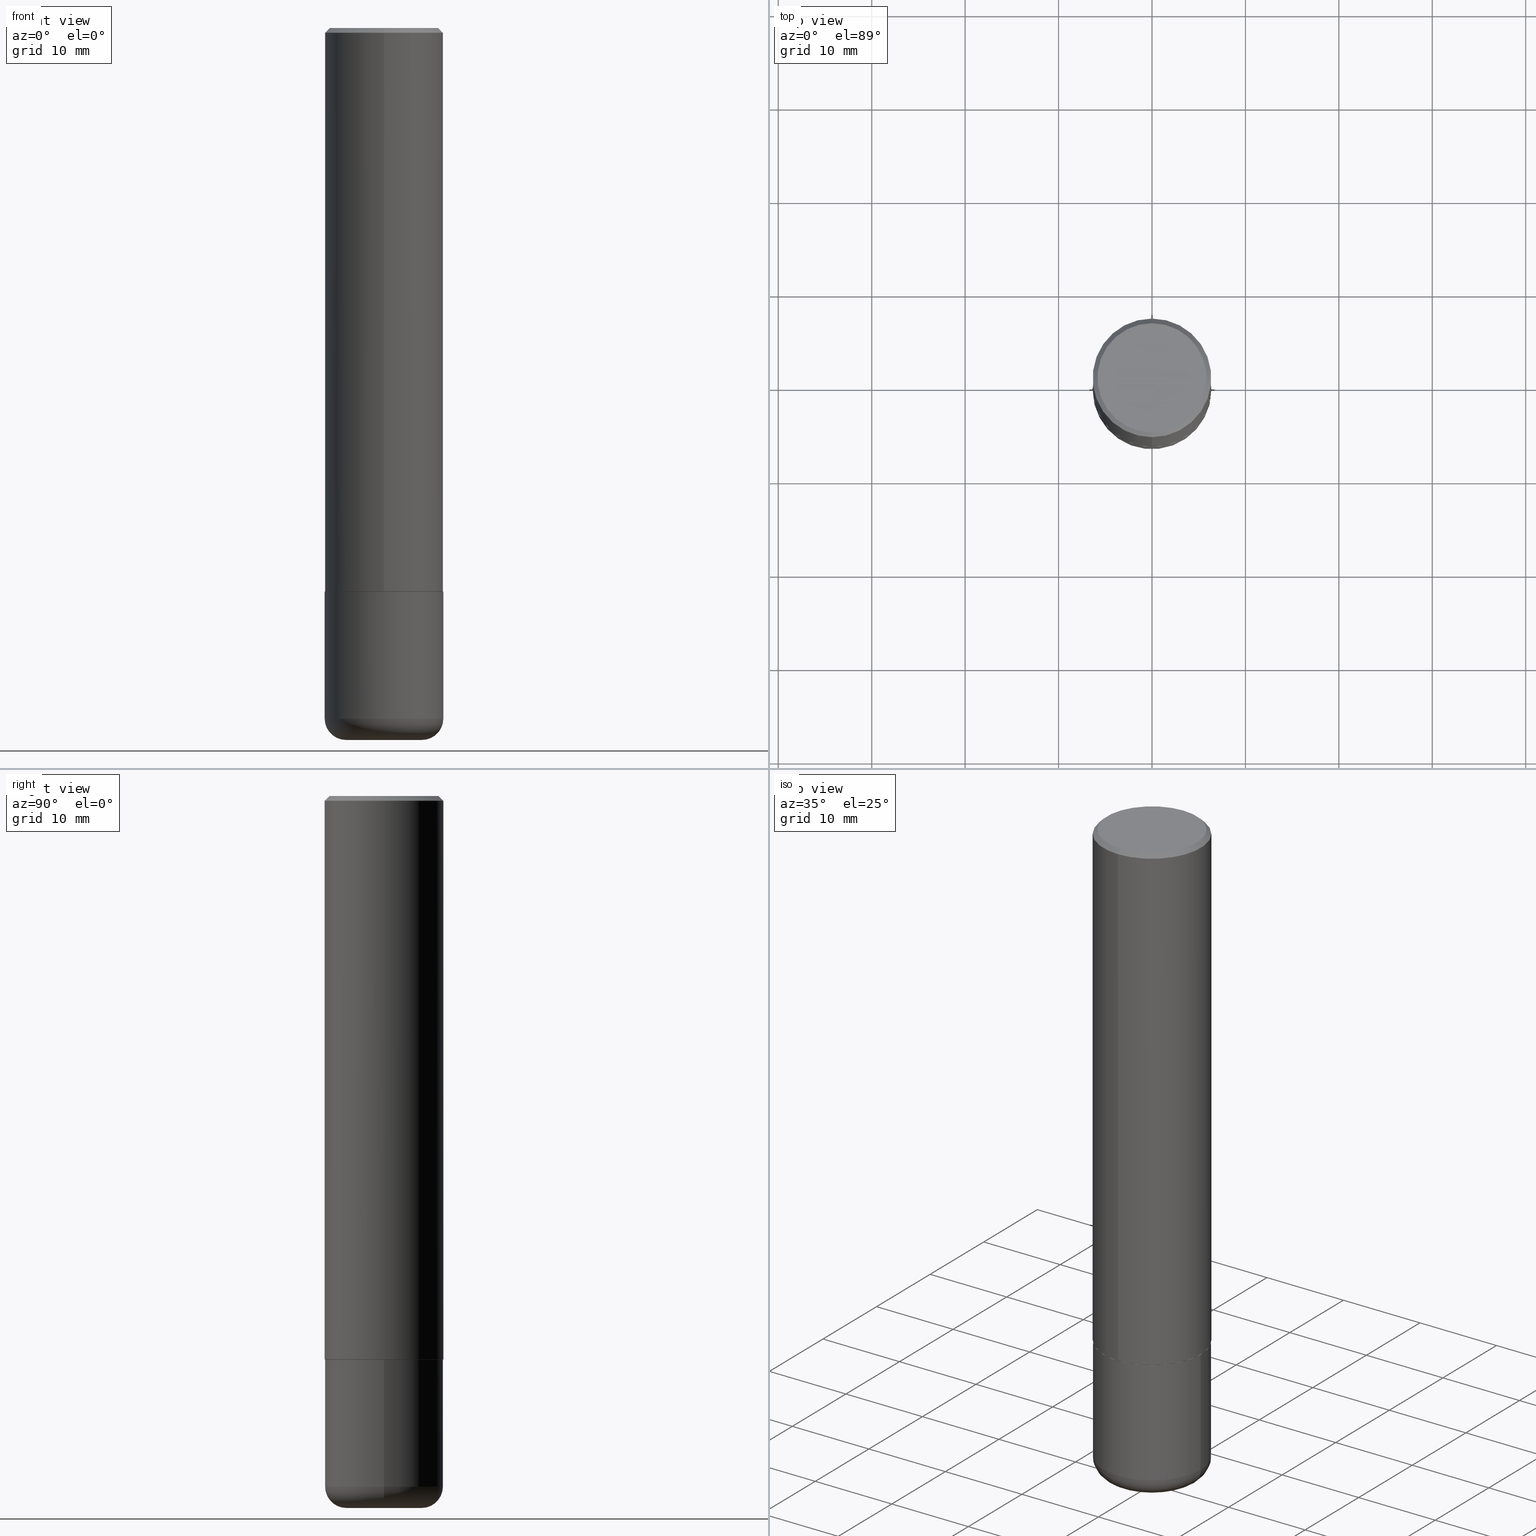
[diagram: canonical four-view strip — front | top / right | iso, engineering-drawing reading convention]
A machine part, canonical four-view strip (front | top / right | iso — engineering-drawing reading convention). The complete STEP part file that produces these views, byte-faithful:
ISO-10303-21;
HEADER;
FILE_DESCRIPTION (( 'STEP AP203' ),
    '1' );
FILE_NAME ('37338.STEP',
    '2024-03-01T23:53:19',
    ( '' ),
    ( '' ),
    'SwSTEP 2.0',
    'SolidWorks 2023',
    '' );
FILE_SCHEMA (( 'CONFIG_CONTROL_DESIGN' ));
ENDSEC;

DATA;
#1 = DIRECTION ( 'NONE',  ( 7.105427357601001859E-15, 1.000000000000000000, -3.491481338843145583E-15 ) ) ;
#2 = ORIENTED_EDGE ( 'NONE', *, *, #320, .T. ) ;
#3 = DIRECTION ( 'NONE',  ( -6.982962677686265922E-15, -1.000000000000000000, 3.500180241882337655E-15 ) ) ;
#4 = DIRECTION ( 'NONE',  ( -6.982962677686265133E-15, -1.000000000000000000, 3.291383124896702687E-15 ) ) ;
#5 = ADVANCED_FACE ( 'NONE', ( #406 ), #19, .F. ) ;
#6 = VECTOR ( 'NONE', #130, 39.37007874015748143 ) ;
#7 = ADVANCED_FACE ( 'NONE', ( #116 ), #308, .T. ) ;
#8 = APPLICATION_PROTOCOL_DEFINITION ( 'international standard', 'config_control_design', 1994, #80 ) ;
#9 = DIRECTION ( 'NONE',  ( -6.982962677686266711E-15, -1.000000000000000000, 3.491974475474889733E-15 ) ) ;
#10 =( NAMED_UNIT ( * ) SI_UNIT ( $, .STERADIAN. ) SOLID_ANGLE_UNIT ( ) );
#11 = AXIS2_PLACEMENT_3D ( 'NONE', #370, #49, #207 ) ;
#12 = FACE_OUTER_BOUND ( 'NONE', #25, .T. ) ;
#13 = ORIENTED_EDGE ( 'NONE', *, *, #108, .T. ) ;
#14 = CIRCLE ( 'NONE', #397, 0.08999999999999964972 ) ;
#15 = DIRECTION ( 'NONE',  ( -2.445468806185136597E-29, 3.491481338843145583E-15, 1.000000000000000000 ) ) ;
#16 = LINE ( 'NONE', #275, #31 ) ;
#17 = EDGE_CURVE ( 'NONE', #279, #215, #240, .T. ) ;
#18 = CARTESIAN_POINT ( 'NONE',  ( 0.000000000000000000, 0.000000000000000000, 0.000000000000000000 ) ) ;
#19 = PLANE ( 'NONE',  #177 ) ;
#20 = AXIS2_PLACEMENT_3D ( 'NONE', #407, #242, #221 ) ;
#21 = DIRECTION ( 'NONE',  ( 1.000000000000000000, -6.982962677686269077E-15, 0.000000000000000000 ) ) ;
#22 = APPROVAL_PERSON_ORGANIZATION ( #144, #62, #171 ) ;
#23 = APPROVAL ( #363, 'UNSPECIFIED' ) ;
#24 = ORIENTED_EDGE ( 'NONE', *, *, #417, .T. ) ;
#25 = EDGE_LOOP ( 'NONE', ( #402, #27, #347, #252 ) ) ;
#26 = DIRECTION ( 'NONE',  ( 6.982962677686265922E-15, 1.000000000000000000, -3.491974475474889339E-15 ) ) ;
#27 = ORIENTED_EDGE ( 'NONE', *, *, #228, .T. ) ;
#28 = DIRECTION ( 'NONE',  ( -2.445468806185136877E-29, 3.491481338843145188E-15, 1.000000000000000000 ) ) ;
#29 = ORIENTED_EDGE ( 'NONE', *, *, #380, .T. ) ;
#30 = DIRECTION ( 'NONE',  ( -6.982962677686266711E-15, -1.000000000000000000, 3.491481338843145583E-15 ) ) ;
#31 = VECTOR ( 'NONE', #379, 39.37007874015748143 ) ;
#32 = ORIENTED_EDGE ( 'NONE', *, *, #154, .F. ) ;
#33 = DIRECTION ( 'NONE',  ( -1.000000000000000000, 7.105427357601006592E-15, 0.000000000000000000 ) ) ;
#34 = PERSON_AND_ORGANIZATION_ROLE ( 'creator' ) ;
#35 = EDGE_CURVE ( 'NONE', #392, #389, #248, .T. ) ;
#36 = ADVANCED_BREP_SHAPE_REPRESENTATION ( '37338', ( #213, #359, #276 ), #360 ) ;
#37 = APPROVAL_STATUS ( 'not_yet_approved' ) ;
#38 = VECTOR ( 'NONE', #238, 39.37007874015748143 ) ;
#39 = DIRECTION ( 'NONE',  ( 1.000000000000000000, -6.982962677686266711E-15, 4.876176775795935793E-29 ) ) ;
#40 = EDGE_CURVE ( 'NONE', #59, #176, #186, .T. ) ;
#41 = COORDINATED_UNIVERSAL_TIME_OFFSET ( 5, 0, .BEHIND. ) ;
#42 = DESIGN_CONTEXT ( 'detailed design', #160, 'design' ) ;
#43 = APPROVAL_STATUS ( 'not_yet_approved' ) ;
#44 = CONICAL_SURFACE ( 'NONE', #218, 0.2489999999999999991, 0.7853981633975507526 ) ;
#45 = AXIS2_PLACEMENT_3D ( 'NONE', #323, #198, #291 ) ;
#46 = COORDINATED_UNIVERSAL_TIME_OFFSET ( 5, 0, .BEHIND. ) ;
#47 = PERSON_AND_ORGANIZATION_ROLE ( 'classification_officer' ) ;
#48 = LINE ( 'NONE', #112, #110 ) ;
#49 = DIRECTION ( 'NONE',  ( -2.445124450715689953E-29, 3.491974475474889339E-15, 1.000000000000000000 ) ) ;
#50 = ORIENTED_EDGE ( 'NONE', *, *, #183, .F. ) ;
#51 = CIRCLE ( 'NONE', #81, 0.2499999999999999722 ) ;
#52 = DIRECTION ( 'NONE',  ( -2.445124450715689953E-29, 3.491974475474889339E-15, 1.000000000000000000 ) ) ;
#53 = EDGE_CURVE ( 'NONE', #59, #414, #48, .T. ) ;
#54 = DIRECTION ( 'NONE',  ( -6.982962677686265922E-15, -1.000000000000000000, 3.278217592397112312E-15 ) ) ;
#55 = FACE_OUTER_BOUND ( 'NONE', #351, .T. ) ;
#56 = ORIENTED_EDGE ( 'NONE', *, *, #346, .T. ) ;
#57 = DIRECTION ( 'NONE',  ( 1.000000000000000000, -6.982962677686269077E-15, 0.000000000000000000 ) ) ;
#58 = DIRECTION ( 'NONE',  ( -2.445468806185136597E-29, 3.491481338843145583E-15, 1.000000000000000000 ) ) ;
#59 = VERTEX_POINT ( 'NONE', #243 ) ;
#60 = AXIS2_PLACEMENT_3D ( 'NONE', #18, #223, #125 ) ;
#61 = DIRECTION ( 'NONE',  ( -2.445124450715689953E-29, 3.491974475474889339E-15, 1.000000000000000000 ) ) ;
#62 = APPROVAL ( #43, 'UNSPECIFIED' ) ;
#63 = EDGE_LOOP ( 'NONE', ( #56, #354, #191, #69 ) ) ;
#64 = DIRECTION ( 'NONE',  ( 1.000000000000000000, -6.982962677686266711E-15, 4.876176775795935793E-29 ) ) ;
#65 = ADVANCED_FACE ( 'NONE', ( #241 ), #118, .T. ) ;
#66 = LINE ( 'NONE', #393, #75 ) ;
#67 = ORIENTED_EDGE ( 'NONE', *, *, #239, .T. ) ;
#68 = CARTESIAN_POINT ( 'NONE',  ( 0.1600000000000000033, -1.127748472446335797E-14, -2.910000000000000586 ) ) ;
#69 = ORIENTED_EDGE ( 'NONE', *, *, #265, .F. ) ;
#70 = APPROVAL_ROLE ( '' ) ;
#71 = APPROVAL_PERSON_ORGANIZATION ( #357, #23, #78 ) ;
#72 = CALENDAR_DATE ( 2024, 1, 3 ) ;
#73 = PERSON_AND_ORGANIZATION ( #271, #163 ) ;
#74 = CARTESIAN_POINT ( 'NONE',  ( -0.2499999999999998612, -8.383853856633305780E-15, -2.910000000000000586 ) ) ;
#75 = VECTOR ( 'NONE', #199, 39.37007874015748143 ) ;
#76 = CARTESIAN_POINT ( 'NONE',  ( -1.646519519465165587E-15, -0.2299999999999995381, 1.230118799794564821E-15 ) ) ;
#77 = CC_DESIGN_SECURITY_CLASSIFICATION ( #321, ( #235 ) ) ;
#78 = APPROVAL_ROLE ( '' ) ;
#79 = PERSON_AND_ORGANIZATION_ROLE ( 'design_supplier' ) ;
#80 = APPLICATION_CONTEXT ( 'configuration controlled 3d designs of mechanical parts and assemblies' ) ;
#81 = AXIS2_PLACEMENT_3D ( 'NONE', #180, #404, #302 ) ;
#82 = CIRCLE ( 'NONE', #151, 0.2489999999999999991 ) ;
#83 = EDGE_CURVE ( 'NONE', #114, #414, #51, .T. ) ;
#84 = EDGE_CURVE ( 'NONE', #381, #279, #16, .T. ) ;
#85 = CARTESIAN_POINT ( 'NONE',  ( 0.000000000000000000, 0.000000000000000000, 0.000000000000000000 ) ) ;
#86 = ORIENTED_EDGE ( 'NONE', *, *, #255, .F. ) ;
#87 = CALENDAR_DATE ( 2024, 1, 3 ) ;
#88 = ORIENTED_EDGE ( 'NONE', *, *, #17, .F. ) ;
#89 = AXIS2_PLACEMENT_3D ( 'NONE', #247, #95, #90 ) ;
#90 = DIRECTION ( 'NONE',  ( -6.982962677686265922E-15, -1.000000000000000000, 3.491974475474888944E-15 ) ) ;
#91 = LINE ( 'NONE', #212, #6 ) ;
#92 = DIRECTION ( 'NONE',  ( -6.982962677686265922E-15, -1.000000000000000000, 3.491974475474888944E-15 ) ) ;
#93 = ORIENTED_EDGE ( 'NONE', *, *, #84, .F. ) ;
#94 = EDGE_LOOP ( 'NONE', ( #67, #356 ) ) ;
#95 = DIRECTION ( 'NONE',  ( -2.445124450715689953E-29, 3.491974475474889339E-15, 1.000000000000000000 ) ) ;
#96 = CARTESIAN_POINT ( 'NONE',  ( 5.804725445999048016E-29, -8.289947404777387606E-15, -2.374000000000000110 ) ) ;
#97 = DIRECTION ( 'NONE',  ( 1.000000000000000000, -6.982962677686271444E-15, 0.000000000000000000 ) ) ;
#98 = AXIS2_PLACEMENT_3D ( 'NONE', #281, #412, #3 ) ;
#99 = ORIENTED_EDGE ( 'NONE', *, *, #108, .F. ) ;
#100 = LINE ( 'NONE', #210, #128 ) ;
#101 = VERTEX_POINT ( 'NONE', #148 ) ;
#102 = CARTESIAN_POINT ( 'NONE',  ( 0.000000000000000000, 0.000000000000000000, 0.000000000000000000 ) ) ;
#103 = ORIENTED_EDGE ( 'NONE', *, *, #260, .T. ) ;
#104 = AXIS2_PLACEMENT_3D ( 'NONE', #376, #306, #372 ) ;
#105 = PERSON_AND_ORGANIZATION ( #271, #163 ) ;
#106 = PERSON_AND_ORGANIZATION ( #271, #163 ) ;
#107 = AXIS2_PLACEMENT_3D ( 'NONE', #324, #166, #353 ) ;
#108 = EDGE_CURVE ( 'NONE', #371, #414, #91, .T. ) ;
#109 = PERSON_AND_ORGANIZATION ( #271, #163 ) ;
#110 = VECTOR ( 'NONE', #409, 39.37007874015748143 ) ;
#111 = CARTESIAN_POINT ( 'NONE',  ( -1.745740669421567467E-15, -0.2500000000000001110, 8.729936188687228278E-16 ) ) ;
#112 = CARTESIAN_POINT ( 'NONE',  ( 1.776356839400251254E-15, 0.2500000000000001110, -8.729936188687228278E-16 ) ) ;
#113 = CARTESIAN_POINT ( 'NONE',  ( 0.2499999999999998612, -1.190595136545512292E-14, -2.910000000000000586 ) ) ;
#114 = VERTEX_POINT ( 'NONE', #225 ) ;
#115 = CARTESIAN_POINT ( 'NONE',  ( -1.715124499442881905E-15, -0.2500000000000000555, -0.01999999999999921979 ) ) ;
#116 = FACE_OUTER_BOUND ( 'NONE', #236, .T. ) ;
#117 = CC_DESIGN_PERSON_AND_ORGANIZATION_ASSIGNMENT ( #329, #268, ( #235 ) ) ;
#118 = TOROIDAL_SURFACE ( 'NONE', #104, 0.1600000000000000033, 0.08999999999999967748 ) ;
#119 = DIRECTION ( 'NONE',  ( -6.982962677686265133E-15, -1.000000000000000000, 3.291383124896702687E-15 ) ) ;
#120 = CARTESIAN_POINT ( 'NONE',  ( 7.336406418555408669E-29, -1.047444401652943478E-14, -2.999999999999999556 ) ) ;
#121 = CC_DESIGN_DATE_AND_TIME_ASSIGNMENT ( #233, #297, ( #321 ) ) ;
#122 = DIRECTION ( 'NONE',  ( -2.445468806185136597E-29, 3.491481338843145583E-15, 1.000000000000000000 ) ) ;
#123 = DIRECTION ( 'NONE',  ( 2.438088387897960049E-29, -3.491481338843145188E-15, -1.000000000000000000 ) ) ;
#124 = ORIENTED_EDGE ( 'NONE', *, *, #53, .T. ) ;
#125 = DIRECTION ( 'NONE',  ( -6.982962677686266711E-15, -1.000000000000000000, 3.491974475474889733E-15 ) ) ;
#126 = CLOSED_SHELL ( 'NONE', ( #170, #7, #5, #249, #65, #398 ) ) ;
#127 = EDGE_LOOP ( 'NONE', ( #103, #322 ) ) ;
#128 = VECTOR ( 'NONE', #28, 39.37007874015748143 ) ;
#129 = CARTESIAN_POINT ( 'NONE',  ( 1.769251412042707241E-15, 0.2489999999999917002, -2.375000000000000888 ) ) ;
#130 = DIRECTION ( 'NONE',  ( 4.937700262164536998E-15, 0.7071067811865435759, -0.7071067811865514585 ) ) ;
#131 = ORIENTED_EDGE ( 'NONE', *, *, #320, .F. ) ;
#132 = DATE_AND_TIME ( #396, #204 ) ;
#133 = ORIENTED_EDGE ( 'NONE', *, *, #380, .F. ) ;
#134 = DIRECTION ( 'NONE',  ( -2.445124450715689953E-29, 3.491974475474889339E-15, 1.000000000000000000 ) ) ;
#135 = APPROVAL ( #37, 'UNSPECIFIED' ) ;
#136 =( NAMED_UNIT ( * ) PLANE_ANGLE_UNIT ( ) SI_UNIT ( $, .RADIAN. ) );
#137 = AXIS2_PLACEMENT_3D ( 'NONE', #96, #335, #54 ) ;
#138 = CC_DESIGN_APPROVAL ( #23, ( #286 ) ) ;
#139 = COORDINATED_UNIVERSAL_TIME_OFFSET ( 5, 0, .BEHIND. ) ;
#140 = CARTESIAN_POINT ( 'NONE',  ( -1.745740669421510471E-15, -0.2500000000000085487, -2.373999999999999222 ) ) ;
#141 = ADVANCED_FACE ( 'NONE', ( #197 ), #256, .F. ) ;
#142 = CARTESIAN_POINT ( 'NONE',  ( 1.745740669421566678E-15, 0.2499999999999998890, -0.02000000000000096839 ) ) ;
#143 = CC_DESIGN_DATE_AND_TIME_ASSIGNMENT ( #132, #395, ( #286 ) ) ;
#144 = PERSON_AND_ORGANIZATION ( #271, #163 ) ;
#145 = CONICAL_SURFACE ( 'NONE', #201, 0.2499999999999999722, 0.7853981633974461696 ) ;
#146 = EDGE_LOOP ( 'NONE', ( #24, #164, #311, #32 ) ) ;
#147 = DIRECTION ( 'NONE',  ( -2.445124450715689953E-29, 3.491974475474889339E-15, 1.000000000000000000 ) ) ;
#148 = CARTESIAN_POINT ( 'NONE',  ( 1.772804125721508731E-15, 0.2489999999999917002, -2.375000000000000888 ) ) ;
#149 = LINE ( 'NONE', #129, #327 ) ;
#150 = CIRCLE ( 'NONE', #340, 0.1600000000000000033 ) ;
#151 = AXIS2_PLACEMENT_3D ( 'NONE', #195, #134, #4 ) ;
#152 = FACE_OUTER_BOUND ( 'NONE', #94, .T. ) ;
#153 = EDGE_CURVE ( 'NONE', #392, #381, #226, .T. ) ;
#154 = EDGE_CURVE ( 'NONE', #216, #176, #66, .T. ) ;
#155 = EDGE_LOOP ( 'NONE', ( #237, #250, #206, #310 ) ) ;
#156 = CARTESIAN_POINT ( 'NONE',  ( 1.675911042644702393E-15, 0.2299999999999995381, -3.761894589238807740E-16 ) ) ;
#157 = ADVANCED_FACE ( 'NONE', ( #413 ), #362, .T. ) ;
#158 = EDGE_LOOP ( 'NONE', ( #314, #124, #391, #50 ) ) ;
#159 = DIRECTION ( 'NONE',  ( 1.000000000000000000, -6.982962677686273810E-15, 0.000000000000000000 ) ) ;
#160 = APPLICATION_CONTEXT ( 'configuration controlled 3d designs of mechanical parts and assemblies' ) ;
#161 = CIRCLE ( 'NONE', #20, 0.2500000000000000000 ) ;
#162 = DIRECTION ( 'NONE',  ( 6.982962677686265922E-15, 1.000000000000000000, -3.500180241882337655E-15 ) ) ;
#163 = ORGANIZATION ( 'UNSPECIFIED', 'UNSPECIFIED', '' ) ;
#164 = ORIENTED_EDGE ( 'NONE', *, *, #229, .T. ) ;
#165 = PLANE ( 'NONE',  #45 ) ;
#166 = DIRECTION ( 'NONE',  ( -2.445124450715689673E-29, 3.491974475474889339E-15, 1.000000000000000000 ) ) ;
#167 = CALENDAR_DATE ( 2024, 1, 3 ) ;
#168 = CARTESIAN_POINT ( 'NONE',  ( 0.1600000000000000033, -1.159171804495923808E-14, -2.999999999999999556 ) ) ;
#169 = CARTESIAN_POINT ( 'NONE',  ( 5.804725445999048016E-29, -8.289947404777387606E-15, -2.374000000000000110 ) ) ;
#170 = ADVANCED_FACE ( 'NONE', ( #403 ), #234, .T. ) ;
#171 = APPROVAL_ROLE ( '' ) ;
#172 = AXIS2_PLACEMENT_3D ( 'NONE', #355, #61, #385 ) ;
#173 = UNCERTAINTY_MEASURE_WITH_UNIT (LENGTH_MEASURE( 1.000000000000000082E-05 ), #200, 'distance_accuracy_value', 'NONE');
#174 = SECURITY_CLASSIFICATION_LEVEL ( 'unclassified' ) ;
#175 = APPROVAL_DATE_TIME ( #336, #62 ) ;
#176 = VERTEX_POINT ( 'NONE', #140 ) ;
#177 = AXIS2_PLACEMENT_3D ( 'NONE', #411, #123, #343 ) ;
#178 = ORIENTED_EDGE ( 'NONE', *, *, #40, .T. ) ;
#179 = CARTESIAN_POINT ( 'NONE',  ( 0.2500000000000000000, -1.003800884917403837E-14, -2.375000000000000000 ) ) ;
#180 = CARTESIAN_POINT ( 'NONE',  ( 4.890248901431403027E-31, -6.983948950949810725E-17, -0.02000000000000009409 ) ) ;
#181 = CARTESIAN_POINT ( 'NONE',  ( 7.116314225998749245E-29, -1.016021069603355467E-14, -2.910000000000000586 ) ) ;
#182 = ORIENTED_EDGE ( 'NONE', *, *, #265, .T. ) ;
#183 = EDGE_CURVE ( 'NONE', #176, #114, #401, .T. ) ;
#184 = CARTESIAN_POINT ( 'NONE',  ( 7.116314225998749245E-29, -1.016021069603355467E-14, -2.910000000000000586 ) ) ;
#185 = EDGE_LOOP ( 'NONE', ( #131, #254, #13, #29 ) ) ;
#186 = CIRCLE ( 'NONE', #137, 0.2500000000000002776 ) ;
#187 = CC_DESIGN_APPROVAL ( #62, ( #321 ) ) ;
#188 = PLANE ( 'NONE',  #258 ) ;
#189 = EDGE_LOOP ( 'NONE', ( #86, #317 ) ) ;
#190 = DIRECTION ( 'NONE',  ( 2.445124450715689953E-29, -3.491974475474889339E-15, -1.000000000000000000 ) ) ;
#191 = ORIENTED_EDGE ( 'NONE', *, *, #260, .F. ) ;
#192 = FACE_OUTER_BOUND ( 'NONE', #185, .T. ) ;
#193 = VERTEX_POINT ( 'NONE', #76 ) ;
#194 = AXIS2_PLACEMENT_3D ( 'NONE', #300, #15, #267 ) ;
#195 = CARTESIAN_POINT ( 'NONE',  ( 5.807170570449764479E-29, -8.293439379252862969E-15, -2.375000000000000000 ) ) ;
#196 = APPROVAL_PERSON_ORGANIZATION ( #73, #135, #70 ) ;
#197 = FACE_OUTER_BOUND ( 'NONE', #224, .T. ) ;
#198 = DIRECTION ( 'NONE',  ( 2.438088387897960049E-29, -3.491481338843145188E-15, -1.000000000000000000 ) ) ;
#199 = DIRECTION ( 'NONE',  ( -4.937700262165053702E-15, -0.7071067811866175168, 0.7071067811864775177 ) ) ;
#200 =( CONVERSION_BASED_UNIT ( 'INCH', #326 ) LENGTH_UNIT ( ) NAMED_UNIT ( #264 ) );
#201 = AXIS2_PLACEMENT_3D ( 'NONE', #382, #318, #162 ) ;
#202 = EDGE_CURVE ( 'NONE', #176, #59, #293, .T. ) ;
#203 = COORDINATED_UNIVERSAL_TIME_OFFSET ( 5, 0, .BEHIND. ) ;
#204 = LOCAL_TIME ( 18, 53, 19.00000000000000000, #259 ) ;
#205 = SHAPE_DEFINITION_REPRESENTATION ( #399, #36 ) ;
#206 = ORIENTED_EDGE ( 'NONE', *, *, #290, .T. ) ;
#207 = DIRECTION ( 'NONE',  ( -6.982962677686265133E-15, -1.000000000000000000, 3.291383124896702687E-15 ) ) ;
#208 = CIRCLE ( 'NONE', #388, 0.2299999999999995381 ) ;
#209 = VERTEX_POINT ( 'NONE', #113 ) ;
#210 = CARTESIAN_POINT ( 'NONE',  ( 0.2500000000000000000, -1.745740669421566678E-15, 1.219044193948983948E-29 ) ) ;
#211 = ADVANCED_FACE ( 'NONE', ( #12 ), #333, .T. ) ;
#212 = CARTESIAN_POINT ( 'NONE',  ( 1.745740669421566678E-15, 0.2499999999999998890, -0.02000000000000096839 ) ) ;
#213 = MANIFOLD_SOLID_BREP ( 'Body-Move/Copy2[1]', #126 ) ;
#214 = DIRECTION ( 'NONE',  ( 6.982962677686265922E-15, 1.000000000000000000, -3.500180241882337655E-15 ) ) ;
#215 = VERTEX_POINT ( 'NONE', #179 ) ;
#216 = VERTEX_POINT ( 'NONE', #301 ) ;
#217 = DIRECTION ( 'NONE',  ( -2.445124450715689953E-29, 3.491974475474889339E-15, 1.000000000000000000 ) ) ;
#218 = AXIS2_PLACEMENT_3D ( 'NONE', #315, #217, #119 ) ;
#219 = CIRCLE ( 'NONE', #375, 0.2500000000000000555 ) ;
#220 = ORIENTED_EDGE ( 'NONE', *, *, #153, .T. ) ;
#221 = DIRECTION ( 'NONE',  ( 1.000000000000000000, -6.982962677686266711E-15, 0.000000000000000000 ) ) ;
#222 = ORIENTED_EDGE ( 'NONE', *, *, #417, .F. ) ;
#223 = DIRECTION ( 'NONE',  ( -2.445124450715689953E-29, 3.491974475474889339E-15, 1.000000000000000000 ) ) ;
#224 = EDGE_LOOP ( 'NONE', ( #222, #338 ) ) ;
#225 = CARTESIAN_POINT ( 'NONE',  ( -1.715124499442881905E-15, -0.2500000000000000555, -0.01999999999999921979 ) ) ;
#226 = CIRCLE ( 'NONE', #374, 0.08999999999999964972 ) ;
#227 = PERSON_AND_ORGANIZATION_ROLE ( 'design_owner' ) ;
#228 = EDGE_CURVE ( 'NONE', #101, #216, #358, .T. ) ;
#229 = EDGE_CURVE ( 'NONE', #101, #59, #149, .T. ) ;
#230 = FACE_OUTER_BOUND ( 'NONE', #189, .T. ) ;
#231 = DIRECTION ( 'NONE',  ( -2.445124450715689673E-29, 3.491974475474889339E-15, 1.000000000000000000 ) ) ;
#232 = CIRCLE ( 'NONE', #89, 0.2299999999999995381 ) ;
#233 = DATE_AND_TIME ( #332, #328 ) ;
#234 = CYLINDRICAL_SURFACE ( 'NONE', #262, 0.2500000000000000000 ) ;
#235 = PRODUCT_DEFINITION_FORMATION_WITH_SPECIFIED_SOURCE ( 'ANY', '', #339, .NOT_KNOWN. ) ;
#236 = EDGE_LOOP ( 'NONE', ( #416, #220, #289, #384 ) ) ;
#237 = ORIENTED_EDGE ( 'NONE', *, *, #153, .F. ) ;
#238 = DIRECTION ( 'NONE',  ( -4.851104656540953231E-15, -0.7071067811865484609, -0.7071067811865465735 ) ) ;
#239 = EDGE_CURVE ( 'NONE', #371, #193, #232, .T. ) ;
#240 = CIRCLE ( 'NONE', #387, 0.2500000000000000000 ) ;
#241 = FACE_OUTER_BOUND ( 'NONE', #155, .T. ) ;
#242 = DIRECTION ( 'NONE',  ( -2.445468806185136597E-29, 3.491481338843145583E-15, 1.000000000000000000 ) ) ;
#243 = CARTESIAN_POINT ( 'NONE',  ( 1.776356839400280836E-15, 0.2499999999999919786, -2.374000000000000998 ) ) ;
#244 = CARTESIAN_POINT ( 'NONE',  ( 4.890248901431403027E-31, -6.983948950949810725E-17, -0.02000000000000009409 ) ) ;
#245 = DIRECTION ( 'NONE',  ( 1.000000000000000000, -6.982962677686266711E-15, 0.000000000000000000 ) ) ;
#246 = ORIENTED_EDGE ( 'NONE', *, *, #53, .F. ) ;
#247 = CARTESIAN_POINT ( 'NONE',  ( -1.043981755273221397E-44, 1.490949731089762593E-30, 4.269646704353420484E-16 ) ) ;
#248 = CIRCLE ( 'NONE', #257, 0.1600000000000000033 ) ;
#249 = ADVANCED_FACE ( 'NONE', ( #55 ), #390, .T. ) ;
#250 = ORIENTED_EDGE ( 'NONE', *, *, #35, .T. ) ;
#251 = CYLINDRICAL_SURFACE ( 'NONE', #60, 0.2500000000000001110 ) ;
#252 = ORIENTED_EDGE ( 'NONE', *, *, #40, .F. ) ;
#253 = MECHANICAL_CONTEXT ( 'NONE', #80, 'mechanical' ) ;
#254 = ORIENTED_EDGE ( 'NONE', *, *, #239, .F. ) ;
#255 = EDGE_CURVE ( 'NONE', #389, #392, #150, .T. ) ;
#256 = PLANE ( 'NONE',  #107 ) ;
#257 = AXIS2_PLACEMENT_3D ( 'NONE', #120, #269, #341 ) ;
#258 = AXIS2_PLACEMENT_3D ( 'NONE', #278, #410, #26 ) ;
#259 = COORDINATED_UNIVERSAL_TIME_OFFSET ( 5, 0, .BEHIND. ) ;
#260 = EDGE_CURVE ( 'NONE', #215, #279, #161, .T. ) ;
#261 = DATE_AND_TIME ( #167, #369 ) ;
#262 = AXIS2_PLACEMENT_3D ( 'NONE', #295, #266, #39 ) ;
#263 = CC_DESIGN_PERSON_AND_ORGANIZATION_ASSIGNMENT ( #105, #34, ( #286 ) ) ;
#264 = DIMENSIONAL_EXPONENTS ( 1.000000000000000000, 0.000000000000000000, 0.000000000000000000, 0.000000000000000000, 0.000000000000000000, 0.000000000000000000, 0.000000000000000000 ) ;
#265 = EDGE_CURVE ( 'NONE', #209, #215, #100, .T. ) ;
#266 = DIRECTION ( 'NONE',  ( -2.445468806185136597E-29, 3.491481338843145583E-15, 1.000000000000000000 ) ) ;
#267 = DIRECTION ( 'NONE',  ( 1.000000000000000000, -6.982962677686265133E-15, 4.883557194083112340E-29 ) ) ;
#268 = PERSON_AND_ORGANIZATION_ROLE ( 'creator' ) ;
#269 = DIRECTION ( 'NONE',  ( -2.445468806185136597E-29, 3.491481338843145583E-15, 1.000000000000000000 ) ) ;
#270 = ADVANCED_FACE ( 'NONE', ( #344 ), #251, .T. ) ;
#271 = PERSON ( 'UNSPECIFIED', 'UNSPECIFIED', 'UNSPECIFIED', ('UNSPECIFIED'), ('UNSPECIFIED'), ('UNSPECIFIED') ) ;
#272 = ORIENTED_EDGE ( 'NONE', *, *, #83, .T. ) ;
#273 = DIRECTION ( 'NONE',  ( 5.024295867788576727E-15, 0.7071067811866224018, 0.7071067811864726327 ) ) ;
#274 = AXIS2_PLACEMENT_3D ( 'NONE', #415, #283, #64 ) ;
#275 = CARTESIAN_POINT ( 'NONE',  ( -0.2500000000000000000, 1.776356839400250465E-15, -1.229733772563726445E-29 ) ) ;
#276 = AXIS2_PLACEMENT_3D ( 'NONE', #102, #294, #331 ) ;
#277 = CC_DESIGN_PERSON_AND_ORGANIZATION_ASSIGNMENT ( #368, #47, ( #321 ) ) ;
#278 = CARTESIAN_POINT ( 'NONE',  ( 1.606081415867837912E-15, 0.2299999999999995381, -5.896717941415518474E-16 ) ) ;
#279 = VERTEX_POINT ( 'NONE', #352 ) ;
#280 = ORIENTED_EDGE ( 'NONE', *, *, #183, .T. ) ;
#281 = CARTESIAN_POINT ( 'NONE',  ( 4.890248901431403027E-31, -6.983948950949810725E-17, -0.02000000000000009409 ) ) ;
#282 = ORIENTED_EDGE ( 'NONE', *, *, #296, .T. ) ;
#283 = DIRECTION ( 'NONE',  ( -2.445468806185136597E-29, 3.491481338843145583E-15, 1.000000000000000000 ) ) ;
#284 = AXIS2_PLACEMENT_3D ( 'NONE', #85, #52, #9 ) ;
#285 = LOCAL_TIME ( 18, 53, 19.00000000000000000, #46 ) ;
#286 = PRODUCT_DEFINITION ( 'UNKNOWN', '', #235, #42 ) ;
#287 = EDGE_LOOP ( 'NONE', ( #246, #178, #280, #133 ) ) ;
#288 = CARTESIAN_POINT ( 'NONE',  ( -0.1600000000000000033, -9.023342318817394938E-15, -2.910000000000000586 ) ) ;
#289 = ORIENTED_EDGE ( 'NONE', *, *, #346, .F. ) ;
#290 = EDGE_CURVE ( 'NONE', #389, #209, #14, .T. ) ;
#291 = DIRECTION ( 'NONE',  ( -1.000000000000000000, 6.982962677686265922E-15, -4.876176775795935793E-29 ) ) ;
#292 = CARTESIAN_POINT ( 'NONE',  ( -0.1600000000000000033, -8.860714747973291991E-15, -2.999999999999999556 ) ) ;
#293 = CIRCLE ( 'NONE', #299, 0.2500000000000002776 ) ;
#294 = DIRECTION ( 'NONE',  ( 0.000000000000000000, 0.000000000000000000, 1.000000000000000000 ) ) ;
#295 = CARTESIAN_POINT ( 'NONE',  ( 0.000000000000000000, 0.000000000000000000, 0.000000000000000000 ) ) ;
#296 = EDGE_CURVE ( 'NONE', #381, #209, #408, .T. ) ;
#297 = DATE_TIME_ROLE ( 'classification_date' ) ;
#298 = EDGE_LOOP ( 'NONE', ( #345, #2, #272, #99 ) ) ;
#299 = AXIS2_PLACEMENT_3D ( 'NONE', #169, #147, #337 ) ;
#300 = CARTESIAN_POINT ( 'NONE',  ( 7.116314225998749245E-29, -1.016021069603355467E-14, -2.910000000000000586 ) ) ;
#301 = CARTESIAN_POINT ( 'NONE',  ( -1.738757706743822090E-15, -0.2490000000000082980, -2.374999999999999556 ) ) ;
#302 = DIRECTION ( 'NONE',  ( -6.982962677686265922E-15, -1.000000000000000000, 3.500180241882337655E-15 ) ) ;
#303 = ADVANCED_FACE ( 'NONE', ( #192 ), #400, .T. ) ;
#304 = CARTESIAN_POINT ( 'NONE',  ( 7.336406418555408669E-29, -1.047444401652943478E-14, -2.999999999999999556 ) ) ;
#305 = CC_DESIGN_PERSON_AND_ORGANIZATION_ASSIGNMENT ( #109, #79, ( #235 ) ) ;
#306 = DIRECTION ( 'NONE',  ( -2.445468806185136597E-29, 3.491481338843145583E-15, 1.000000000000000000 ) ) ;
#307 = DIRECTION ( 'NONE',  ( -2.445468806185136597E-29, 3.491481338843145583E-15, 1.000000000000000000 ) ) ;
#308 = TOROIDAL_SURFACE ( 'NONE', #194, 0.1600000000000000033, 0.08999999999999967748 ) ;
#309 = CIRCLE ( 'NONE', #98, 0.2499999999999999722 ) ;
#310 = ORIENTED_EDGE ( 'NONE', *, *, #296, .F. ) ;
#311 = ORIENTED_EDGE ( 'NONE', *, *, #202, .F. ) ;
#312 = DIRECTION ( 'NONE',  ( -2.445468806185136597E-29, 3.491481338843145583E-15, 1.000000000000000000 ) ) ;
#313 = ADVANCED_FACE ( 'NONE', ( #342 ), #44, .T. ) ;
#314 = ORIENTED_EDGE ( 'NONE', *, *, #202, .T. ) ;
#315 = CARTESIAN_POINT ( 'NONE',  ( 5.807170570449764479E-29, -8.293439379252862969E-15, -2.375000000000000000 ) ) ;
#316 = ADVANCED_FACE ( 'NONE', ( #378 ), #145, .T. ) ;
#317 = ORIENTED_EDGE ( 'NONE', *, *, #35, .F. ) ;
#318 = DIRECTION ( 'NONE',  ( 2.445124450715689953E-29, -3.491974475474889339E-15, -1.000000000000000000 ) ) ;
#319 = VECTOR ( 'NONE', #231, 39.37007874015748143 ) ;
#320 = EDGE_CURVE ( 'NONE', #193, #114, #405, .T. ) ;
#321 = SECURITY_CLASSIFICATION ( '', '', #174 ) ;
#322 = ORIENTED_EDGE ( 'NONE', *, *, #17, .T. ) ;
#323 = CARTESIAN_POINT ( 'NONE',  ( 1.449005363638152099E-28, -2.300140402884597367E-16, -2.999999999999999556 ) ) ;
#324 = CARTESIAN_POINT ( 'NONE',  ( 5.807170570449764479E-29, -8.293439379252862969E-15, -2.375000000000000000 ) ) ;
#325 = DATE_AND_TIME ( #72, #334 ) ;
#326 = LENGTH_MEASURE_WITH_UNIT ( LENGTH_MEASURE( 0.02539999999999999897 ), #361 );
#327 = VECTOR ( 'NONE', #273, 39.37007874015748143 ) ;
#328 = LOCAL_TIME ( 18, 53, 19.00000000000000000, #203 ) ;
#329 = PERSON_AND_ORGANIZATION ( #271, #163 ) ;
#330 = EDGE_CURVE ( 'NONE', #193, #371, #208, .T. ) ;
#331 = DIRECTION ( 'NONE',  ( 1.000000000000000000, 0.000000000000000000, 0.000000000000000000 ) ) ;
#332 = CALENDAR_DATE ( 2024, 1, 3 ) ;
#333 = CONICAL_SURFACE ( 'NONE', #11, 0.2489999999999999991, 0.7853981633975507526 ) ;
#334 = LOCAL_TIME ( 18, 53, 19.00000000000000000, #41 ) ;
#335 = DIRECTION ( 'NONE',  ( -2.445124450715689953E-29, 3.491974475474889339E-15, 1.000000000000000000 ) ) ;
#336 = DATE_AND_TIME ( #87, #285 ) ;
#337 = DIRECTION ( 'NONE',  ( -6.982962677686265922E-15, -1.000000000000000000, 3.278217592397112312E-15 ) ) ;
#338 = ORIENTED_EDGE ( 'NONE', *, *, #228, .F. ) ;
#339 = PRODUCT ( '37338', '37338', '', ( #253 ) ) ;
#340 = AXIS2_PLACEMENT_3D ( 'NONE', #304, #122, #97 ) ;
#341 = DIRECTION ( 'NONE',  ( 1.000000000000000000, -6.982962677686271444E-15, 0.000000000000000000 ) ) ;
#342 = FACE_OUTER_BOUND ( 'NONE', #146, .T. ) ;
#343 = DIRECTION ( 'NONE',  ( -1.000000000000000000, 6.982962677686265922E-15, -4.876176775795935793E-29 ) ) ;
#344 = FACE_OUTER_BOUND ( 'NONE', #287, .T. ) ;
#345 = ORIENTED_EDGE ( 'NONE', *, *, #330, .F. ) ;
#346 = EDGE_CURVE ( 'NONE', #209, #381, #219, .T. ) ;
#347 = ORIENTED_EDGE ( 'NONE', *, *, #154, .T. ) ;
#348 = ADVANCED_FACE ( 'NONE', ( #152 ), #188, .F. ) ;
#349 = CARTESIAN_POINT ( 'NONE',  ( -1.043981755273221397E-44, 1.490949731089762593E-30, 4.269646704353420484E-16 ) ) ;
#350 = AXIS2_PLACEMENT_3D ( 'NONE', #181, #312, #57 ) ;
#351 = EDGE_LOOP ( 'NONE', ( #93, #282, #182, #88 ) ) ;
#352 = CARTESIAN_POINT ( 'NONE',  ( -0.2500000000000000000, -7.449882598492762717E-15, -2.375000000000000000 ) ) ;
#353 = DIRECTION ( 'NONE',  ( -6.982962677686265922E-15, -1.000000000000000000, 3.491974475474889339E-15 ) ) ;
#354 = ORIENTED_EDGE ( 'NONE', *, *, #84, .T. ) ;
#355 = CARTESIAN_POINT ( 'NONE',  ( 5.807170570449764479E-29, -8.293439379252862969E-15, -2.375000000000000000 ) ) ;
#356 = ORIENTED_EDGE ( 'NONE', *, *, #330, .T. ) ;
#357 = PERSON_AND_ORGANIZATION ( #271, #163 ) ;
#358 = CIRCLE ( 'NONE', #172, 0.2489999999999999991 ) ;
#359 = MANIFOLD_SOLID_BREP ( 'Body-Move/Copy2[2]', #386 ) ;
#360 =( GEOMETRIC_REPRESENTATION_CONTEXT ( 3 ) GLOBAL_UNCERTAINTY_ASSIGNED_CONTEXT ( ( #173 ) ) GLOBAL_UNIT_ASSIGNED_CONTEXT ( ( #200, #136, #10 ) ) REPRESENTATION_CONTEXT ( 'NONE', 'WORKASPACE' ) );
#361 =( LENGTH_UNIT ( ) NAMED_UNIT ( * ) SI_UNIT ( $, .METRE. ) );
#362 = CYLINDRICAL_SURFACE ( 'NONE', #284, 0.2500000000000001110 ) ;
#363 = APPROVAL_STATUS ( 'not_yet_approved' ) ;
#364 = APPROVAL_DATE_TIME ( #261, #135 ) ;
#365 = AXIS2_PLACEMENT_3D ( 'NONE', #244, #190, #214 ) ;
#366 = APPLICATION_PROTOCOL_DEFINITION ( 'international standard', 'config_control_design', 1994, #160 ) ;
#367 = CC_DESIGN_PERSON_AND_ORGANIZATION_ASSIGNMENT ( #106, #227, ( #339 ) ) ;
#368 = PERSON_AND_ORGANIZATION ( #271, #163 ) ;
#369 = LOCAL_TIME ( 18, 53, 19.00000000000000000, #139 ) ;
#370 = CARTESIAN_POINT ( 'NONE',  ( 5.807170570449764479E-29, -8.293439379252862969E-15, -2.375000000000000000 ) ) ;
#371 = VERTEX_POINT ( 'NONE', #156 ) ;
#372 = DIRECTION ( 'NONE',  ( 1.000000000000000000, -6.982962677686265133E-15, 4.883557194083112340E-29 ) ) ;
#373 = DIRECTION ( 'NONE',  ( -2.445124450715689953E-29, 3.491974475474889339E-15, 1.000000000000000000 ) ) ;
#374 = AXIS2_PLACEMENT_3D ( 'NONE', #288, #1, #33 ) ;
#375 = AXIS2_PLACEMENT_3D ( 'NONE', #184, #307, #21 ) ;
#376 = CARTESIAN_POINT ( 'NONE',  ( 7.116314225998749245E-29, -1.016021069603355467E-14, -2.910000000000000586 ) ) ;
#377 = PRODUCT_RELATED_PRODUCT_CATEGORY ( 'detail', '', ( #339 ) ) ;
#378 = FACE_OUTER_BOUND ( 'NONE', #298, .T. ) ;
#379 = DIRECTION ( 'NONE',  ( -2.445468806185136877E-29, 3.491481338843145188E-15, 1.000000000000000000 ) ) ;
#380 = EDGE_CURVE ( 'NONE', #414, #114, #309, .T. ) ;
#381 = VERTEX_POINT ( 'NONE', #74 ) ;
#382 = CARTESIAN_POINT ( 'NONE',  ( 4.890248901431403027E-31, -6.983948950949810725E-17, -0.02000000000000009409 ) ) ;
#383 = CARTESIAN_POINT ( 'NONE',  ( 5.807988414689700538E-29, -8.292268179752471696E-15, -2.375000000000000000 ) ) ;
#384 = ORIENTED_EDGE ( 'NONE', *, *, #290, .F. ) ;
#385 = DIRECTION ( 'NONE',  ( -6.982962677686265133E-15, -1.000000000000000000, 3.291383124896702687E-15 ) ) ;
#386 = CLOSED_SHELL ( 'NONE', ( #313, #157, #316, #303, #270, #211, #141, #348 ) ) ;
#387 = AXIS2_PLACEMENT_3D ( 'NONE', #383, #58, #245 ) ;
#388 = AXIS2_PLACEMENT_3D ( 'NONE', #349, #373, #92 ) ;
#389 = VERTEX_POINT ( 'NONE', #168 ) ;
#390 = CYLINDRICAL_SURFACE ( 'NONE', #274, 0.2500000000000000000 ) ;
#391 = ORIENTED_EDGE ( 'NONE', *, *, #83, .F. ) ;
#392 = VERTEX_POINT ( 'NONE', #292 ) ;
#393 = CARTESIAN_POINT ( 'NONE',  ( -1.738757706743822090E-15, -0.2490000000000082980, -2.374999999999999556 ) ) ;
#394 = CC_DESIGN_APPROVAL ( #135, ( #235 ) ) ;
#395 = DATE_TIME_ROLE ( 'creation_date' ) ;
#396 = CALENDAR_DATE ( 2024, 1, 3 ) ;
#397 = AXIS2_PLACEMENT_3D ( 'NONE', #68, #30, #159 ) ;
#398 = ADVANCED_FACE ( 'NONE', ( #230 ), #165, .T. ) ;
#399 = PRODUCT_DEFINITION_SHAPE ( 'NONE', 'NONE',  #286 ) ;
#400 = CONICAL_SURFACE ( 'NONE', #365, 0.2499999999999999722, 0.7853981633974461696 ) ;
#401 = LINE ( 'NONE', #111, #319 ) ;
#402 = ORIENTED_EDGE ( 'NONE', *, *, #229, .F. ) ;
#403 = FACE_OUTER_BOUND ( 'NONE', #63, .T. ) ;
#404 = DIRECTION ( 'NONE',  ( -2.445124450715689953E-29, 3.491974475474889339E-15, 1.000000000000000000 ) ) ;
#405 = LINE ( 'NONE', #115, #38 ) ;
#406 = FACE_OUTER_BOUND ( 'NONE', #127, .T. ) ;
#407 = CARTESIAN_POINT ( 'NONE',  ( 5.807988414689700538E-29, -8.292268179752471696E-15, -2.375000000000000000 ) ) ;
#408 = CIRCLE ( 'NONE', #350, 0.2500000000000000555 ) ;
#409 = DIRECTION ( 'NONE',  ( -2.445124450715689673E-29, 3.491974475474889339E-15, 1.000000000000000000 ) ) ;
#410 = DIRECTION ( 'NONE',  ( 2.445124450715689673E-29, -3.491974475474889339E-15, -1.000000000000000000 ) ) ;
#411 = CARTESIAN_POINT ( 'NONE',  ( 5.807988414689700538E-29, -8.292268179752471696E-15, -2.375000000000000000 ) ) ;
#412 = DIRECTION ( 'NONE',  ( -2.445124450715689953E-29, 3.491974475474889339E-15, 1.000000000000000000 ) ) ;
#413 = FACE_OUTER_BOUND ( 'NONE', #158, .T. ) ;
#414 = VERTEX_POINT ( 'NONE', #142 ) ;
#415 = CARTESIAN_POINT ( 'NONE',  ( 0.000000000000000000, 0.000000000000000000, 0.000000000000000000 ) ) ;
#416 = ORIENTED_EDGE ( 'NONE', *, *, #255, .T. ) ;
#417 = EDGE_CURVE ( 'NONE', #216, #101, #82, .T. ) ;
#418 = APPROVAL_DATE_TIME ( #325, #23 ) ;
ENDSEC;
END-ISO-10303-21;
